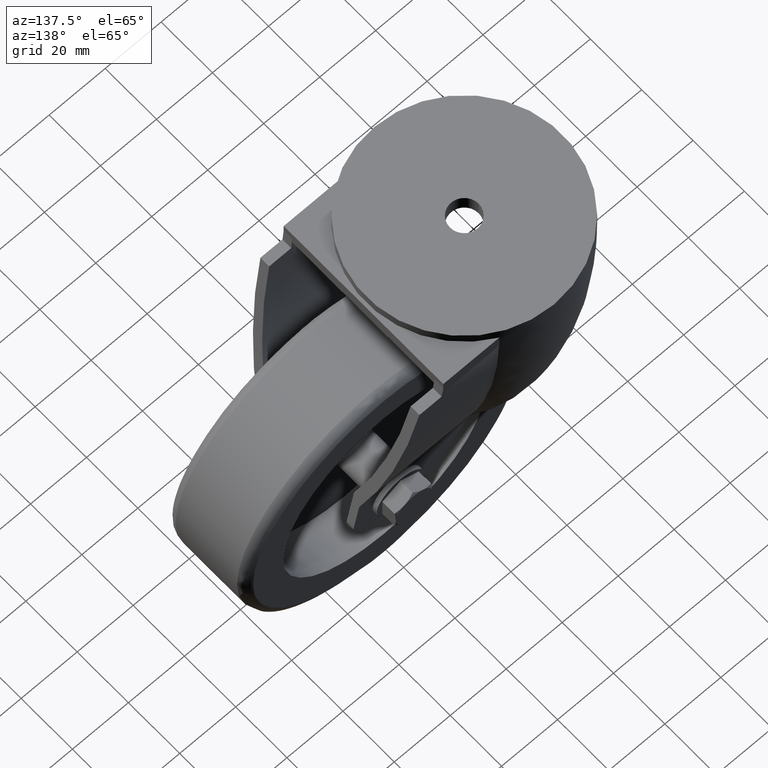
[diagram: clean part render]
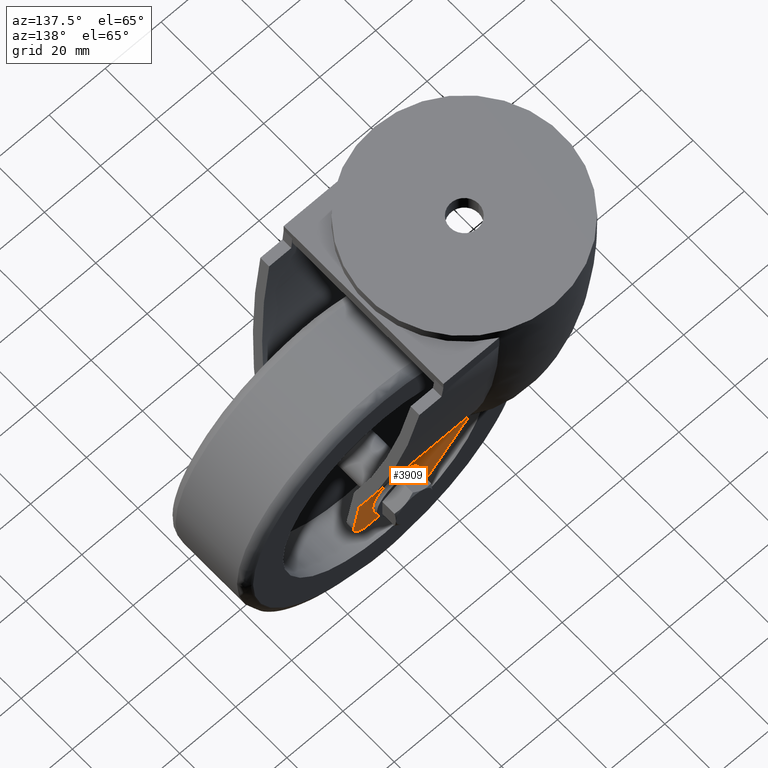
[diagram: same view with one face highlighted and labeled with its STEP entity id]
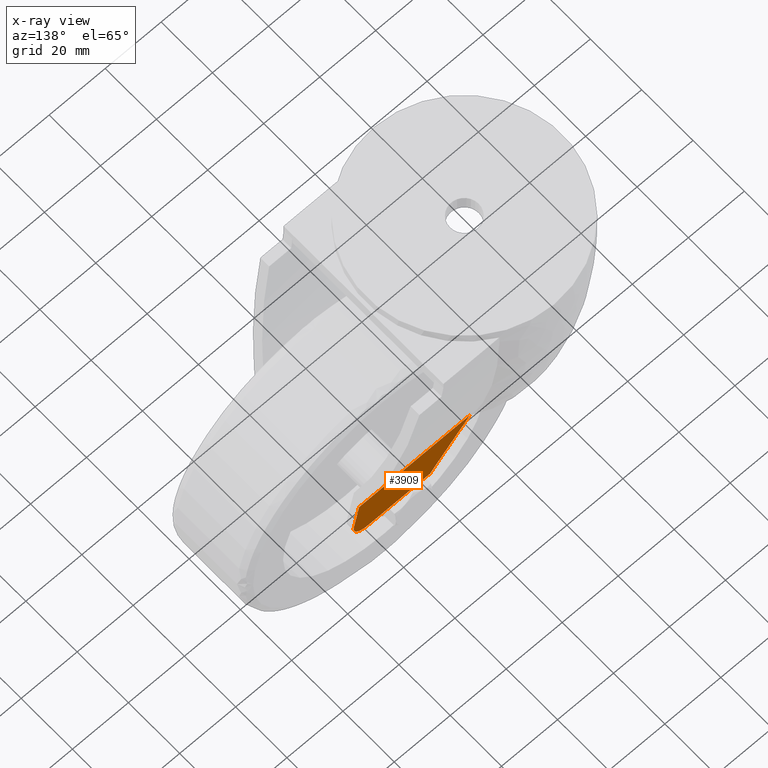
[diagram: x-ray of the same camera — body ghosted, the highlighted face saturated]
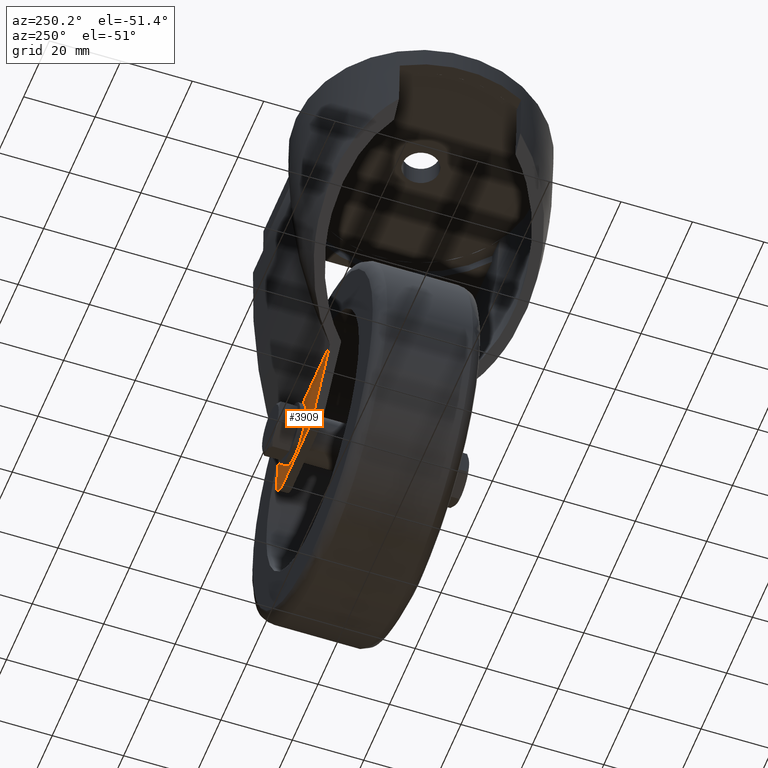
[diagram: same view with one face highlighted and labeled with its STEP entity id]
A machine part, auxiliary view. The second image highlights one B-rep face of the part: STEP entity #3909.
The next image is the same camera in x-ray: the body ghosted, the highlighted face saturated — about 0% of this face is hidden behind the body in this view.
A second angle (auxiliary view) of the same face is appended — the face is thin or edge-on in the first view.
In plain terms, the highlighted planar face has unit normal (0, 1, 0).
Its self-contained STEP definition (entity closure, byte-faithful):
#3396=CARTESIAN_POINT('',(15.998477758083453,19.694907978291894,-73.002270044212651));
#3397=VERTEX_POINT('',#3396);
#3847=CARTESIAN_POINT('',(15.998477758083482,19.694920329250522,-88.850015485194774));
#3848=DIRECTION('',(0.0,1.0,0.0));
#3849=DIRECTION('',(0.0,0.0,1.0));
#3850=AXIS2_PLACEMENT_3D('',#3847,#3848,#3849);
#3851=PLANE('',#3850);
#3852=CARTESIAN_POINT('',(55.627730809523371,19.694920329250522,-73.002317828626815));
#3853=VERTEX_POINT('',#3852);
#3854=CARTESIAN_POINT('',(57.504717630802475,19.694920329250522,-82.920266623518671));
#3855=VERTEX_POINT('',#3854);
#3856=CARTESIAN_POINT('',(55.627730809523371,19.694920329250522,-73.002317828626815));
#3857=DIRECTION('',(0.185950789083984,3.519630E-016,-0.982559058804632));
#3858=VECTOR('',#3857,10.093997613698562);
#3859=LINE('',#3856,#3858);
#3860=EDGE_CURVE('',#3853,#3855,#3859,.T.);
#3861=ORIENTED_EDGE('',*,*,#3860,.T.);
#3862=CARTESIAN_POINT('',(57.591922262020432,19.694920329250522,-83.850019771834013));
#3863=VERTEX_POINT('',#3862);
#3864=CARTESIAN_POINT('',(57.591922262020432,19.694920329250522,-83.850019771834013));
#3865=DIRECTION('',(-0.093383459983642,0.0,0.995630217199882));
#3866=VECTOR('',#3865,0.933833799189208);
#3867=LINE('',#3864,#3866);
#3868=EDGE_CURVE('',#3863,#3855,#3867,.T.);
#3869=ORIENTED_EDGE('',*,*,#3868,.F.);
#3870=CARTESIAN_POINT('',(52.591926548658762,19.694920329250522,-88.850015485194774));
#3871=VERTEX_POINT('',#3870);
#3872=CARTESIAN_POINT('',(52.591926548658790,19.694920329250522,-83.850019771834013));
#3873=DIRECTION('',(-1.096849E-018,1.0,-6.123234E-017));
#3874=DIRECTION('',(0.0,-6.123234E-017,-1.0));
#3875=AXIS2_PLACEMENT_3D('',#3872,#3873,#3874);
#3876=CIRCLE('',#3875,4.999995713361663);
#3877=EDGE_CURVE('',#3863,#3871,#3876,.T.);
#3878=ORIENTED_EDGE('',*,*,#3877,.T.);
#3879=CARTESIAN_POINT('',(30.266812339874463,19.694920329250522,-88.850015485194774));
#3880=VERTEX_POINT('',#3879);
#3881=CARTESIAN_POINT('',(30.266812339874466,19.694920329250529,-88.850015485194774));
#3882=DIRECTION('',(1.0,0.0,0.0));
#3883=VECTOR('',#3882,22.325114208784296);
#3884=LINE('',#3881,#3883);
#3885=EDGE_CURVE('',#3880,#3871,#3884,.T.);
#3886=ORIENTED_EDGE('',*,*,#3885,.F.);
#3887=CARTESIAN_POINT('',(28.890648151158189,19.694920329250522,-87.209966869292657));
#3888=VERTEX_POINT('',#3887);
#3889=CARTESIAN_POINT('',(30.266812339874463,19.694920329250522,-88.850015485194774));
#3890=DIRECTION('',(-0.642787609686539,0.0,0.766044443118978));
#3891=VECTOR('',#3890,2.140931418057937);
#3892=LINE('',#3889,#3891);
#3893=EDGE_CURVE('',#3880,#3888,#3892,.T.);
#3894=ORIENTED_EDGE('',*,*,#3893,.T.);
#3895=CARTESIAN_POINT('',(15.998477758083453,19.694907978291894,-73.002270044212651));
#3896=DIRECTION('',(0.671989936579987,0.000000643779881,-0.740560277853741));
#3897=VECTOR('',#3896,19.185064673271597);
#3898=LINE('',#3895,#3897);
#3899=EDGE_CURVE('',#3397,#3888,#3898,.T.);
#3900=ORIENTED_EDGE('',*,*,#3899,.F.);
#3901=CARTESIAN_POINT('',(15.998477758083482,19.694920329250522,-73.002317828626815));
#3902=DIRECTION('',(1.0,0.0,0.0));
#3903=VECTOR('',#3902,39.629253051439903);
#3904=LINE('',#3901,#3903);
#3905=EDGE_CURVE('',#3397,#3853,#3904,.T.);
#3906=ORIENTED_EDGE('',*,*,#3905,.T.);
#3907=EDGE_LOOP('',(#3861,#3869,#3878,#3886,#3894,#3900,#3906));
#3908=FACE_OUTER_BOUND('',#3907,.T.);
#3909=ADVANCED_FACE('',(#3908),#3851,.T.);